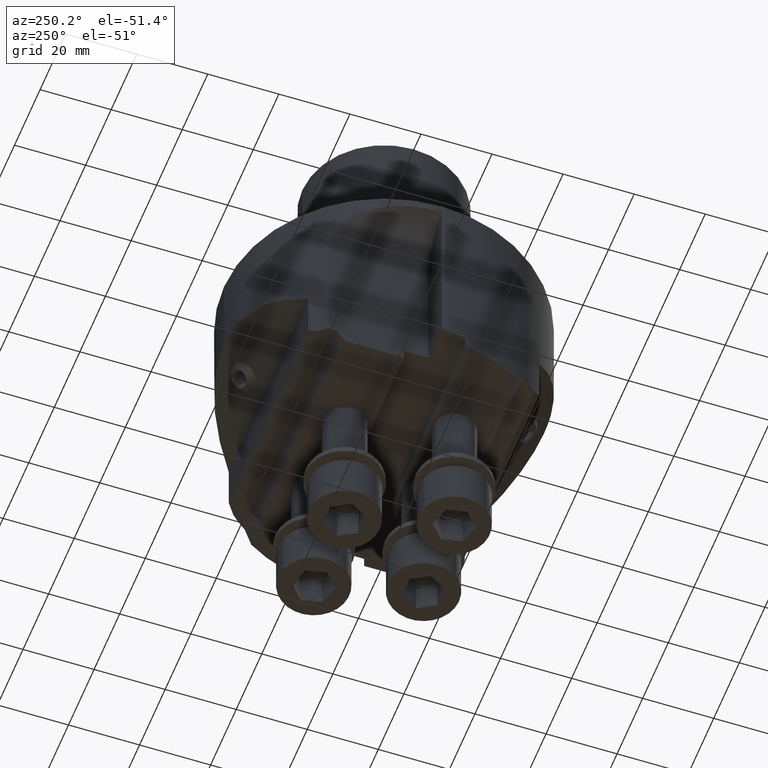
[diagram: clean part render]
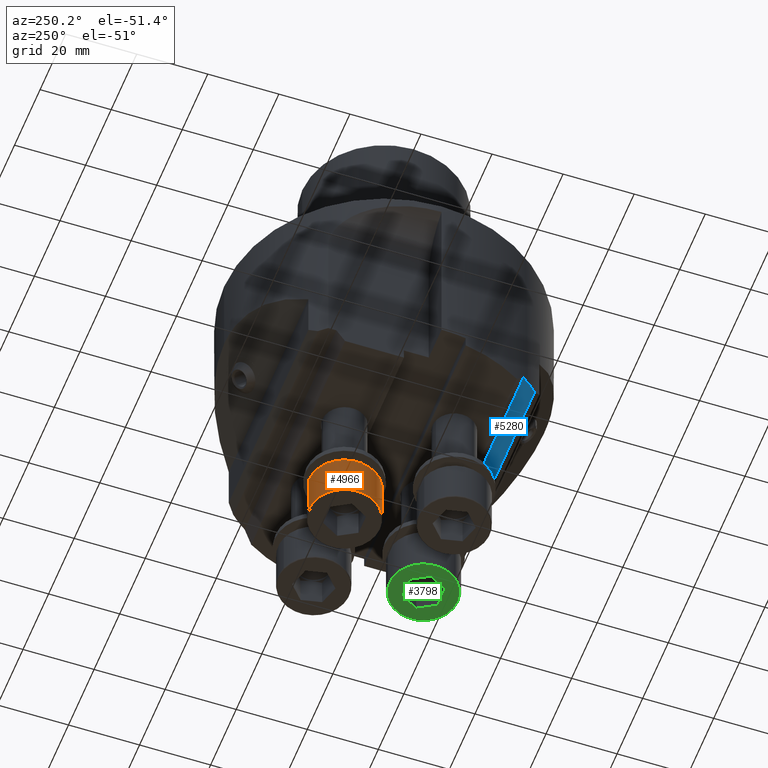
[diagram: same view with three faces highlighted in distinct colors, each labeled with its STEP entity id]
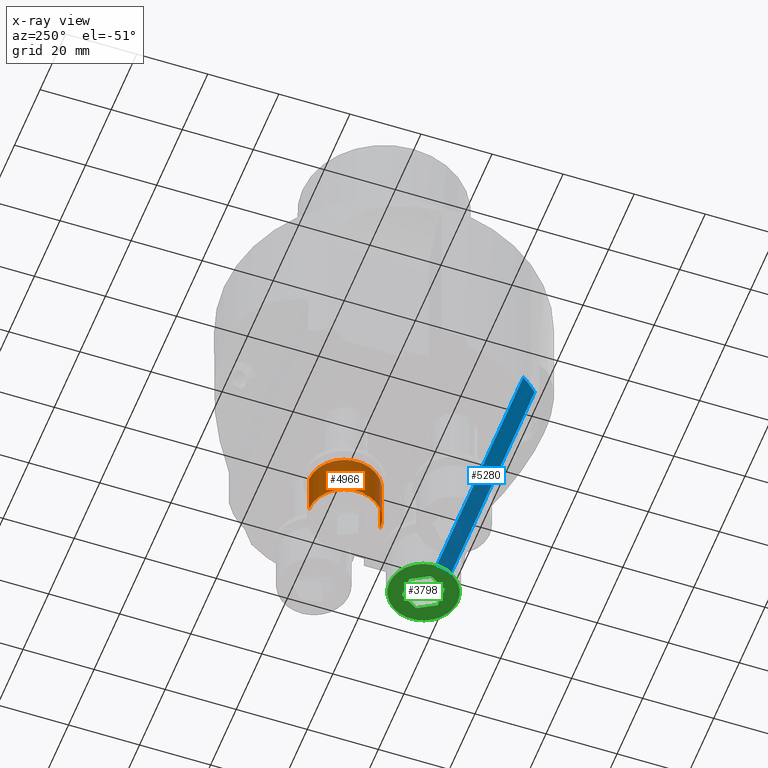
[diagram: x-ray of the same camera — body ghosted, the three highlighted faces saturated]
A machine part, auxiliary view with three faces highlighted in distinct colors.
The next image is the same camera in x-ray (body ghosted, the three faces saturated) — at least one of them is partly hidden behind the body in this view.
Their STEP definitions:

[orange] entity #4966 — the highlighted cylindrical surface (partial cylindrical patch) has radius 10 mm, axis along (-0, 0, -1).
#2578=EDGE_CURVE('NONE',#4334,#5738,#6726,.T.);
#2612=VERTEX_POINT('NONE',#6762);
#3098=EDGE_CURVE('NONE',#2612,#4334,#7309,.T.);
#4334=VERTEX_POINT('NONE',#8710);
#4966=ADVANCED_FACE('NONE',(#9423),#9424,.T.);
#5286=EDGE_CURVE('NONE',#6120,#2612,#9780,.T.);
#5738=VERTEX_POINT('NONE',#10288);
#6010=EDGE_CURVE('NONE',#6120,#5738,#10589,.T.);
#6120=VERTEX_POINT('NONE',#10716);
#6726=CIRCLE('',#11555,10.0);
#6762=CARTESIAN_POINT('',(-8.0,24.0,-83.1));
#7309=LINE('',#12364,#12365);
#8710=CARTESIAN_POINT('',(-8.0,24.0,-95.6));
#9423=FACE_OUTER_BOUND('',#15563,.T.);
#9424=CYLINDRICAL_SURFACE('',#15564,10.0);
#9780=CIRCLE('',#16307,10.0);
#10288=CARTESIAN_POINT('',(-8.0,4.0,-95.6));
#10589=LINE('',#17548,#17549);
#10716=CARTESIAN_POINT('',(-8.0,4.0,-83.1));
#11555=AXIS2_PLACEMENT_3D('',#18402,#18403,#18404);
#12364=CARTESIAN_POINT('',(-8.0,24.0,-88.5539891070486));
#12365=VECTOR('',#19139,1000.0);
#15563=EDGE_LOOP('',(#21869,#21870,#21871,#21872));
#15564=AXIS2_PLACEMENT_3D('',#21873,#21874,#21875);
#16307=AXIS2_PLACEMENT_3D('',#22285,#22286,#22287);
#17548=CARTESIAN_POINT('',(-8.0,4.0,-88.5539891070486));
#17549=VECTOR('',#23315,1000.0);
#18402=CARTESIAN_POINT('',(-8.0,14.0,-95.6));
#18403=DIRECTION('',(0.0,0.0,1.0));
#18404=DIRECTION('',(-1.66533453693774E-016,-1.0,0.0));
#19139=DIRECTION('',(0.0,0.0,-1.0));
#21869=ORIENTED_EDGE('',*,*,#6010,.F.);
#21870=ORIENTED_EDGE('',*,*,#5286,.T.);
#21871=ORIENTED_EDGE('',*,*,#3098,.T.);
#21872=ORIENTED_EDGE('',*,*,#2578,.T.);
#21873=CARTESIAN_POINT('',(-8.0,14.0,-88.5539891070486));
#21874=DIRECTION('',(-0.0,0.0,-1.0));
#21875=DIRECTION('',(1.66533453693774E-016,1.0,0.0));
#22285=CARTESIAN_POINT('',(-8.0,14.0,-83.1));
#22286=DIRECTION('',(0.0,0.0,-1.0));
#22287=DIRECTION('',(1.66533453693774E-016,1.0,0.0));
#23315=DIRECTION('',(0.0,0.0,-1.0));

[blue] entity #5280 — the highlighted planar face has unit normal (0, -0, 1).
#2332=VERTEX_POINT('NONE',#6447);
#2386=EDGE_CURVE('NONE',#4972,#2332,#6509,.T.);
#2962=EDGE_CURVE('NONE',#3320,#3476,#7155,.T.);
#3320=VERTEX_POINT('NONE',#7561);
#3476=VERTEX_POINT('NONE',#7741);
#3888=EDGE_CURVE('NONE',#4972,#4964,#8202,.T.);
#4926=EDGE_CURVE('NONE',#3476,#2332,#9378,.T.);
#4964=VERTEX_POINT('NONE',#9421);
#4972=VERTEX_POINT('NONE',#9431);
#5280=ADVANCED_FACE('NONE',(#9773),#9774,.F.);
#5684=EDGE_CURVE('NONE',#4964,#3320,#10224,.T.);
#6447=CARTESIAN_POINT('',(-36.7287353444139,-26.0,-52.5));
#6509=LINE('',#11262,#11263);
#7155=LINE('',#12163,#12164);
#7561=CARTESIAN_POINT('',(33.0870065131314,-30.5,-52.5));
#7741=CARTESIAN_POINT('',(-33.0870065131314,-30.5,-52.5));
#8202=LINE('',#13685,#13686);
#9378=CIRCLE('',#15454,45.0);
#9421=CARTESIAN_POINT('',(34.9999999999998,-28.2842712474622,-52.5));
#9431=CARTESIAN_POINT('',(34.9999999999998,-26.0,-52.5));
#9773=FACE_OUTER_BOUND('',#16296,.T.);
#9774=PLANE('',#16297);
#10224=CIRCLE('',#17062,45.0);
#11262=CARTESIAN_POINT('',(45.0,-26.0,-52.5));
#11263=VECTOR('',#18137,1000.0);
#12163=CARTESIAN_POINT('',(-31.1247489949718,-30.5,-52.5));
#12164=VECTOR('',#18944,1000.0);
#13685=CARTESIAN_POINT('',(34.9999999999997,-45.0000000000006,-52.5));
#13686=VECTOR('',#20291,1000.0);
#15454=AXIS2_PLACEMENT_3D('',#21813,#21814,#21815);
#16296=EDGE_LOOP('',(#22273,#22274,#22275,#22276,#22277));
#16297=AXIS2_PLACEMENT_3D('',#22278,#22279,#22280);
#17062=AXIS2_PLACEMENT_3D('',#22849,#22850,#22851);
#18137=DIRECTION('',(-1.0,0.0,0.0));
#18944=DIRECTION('',(-1.0,0.0,0.0));
#20291=DIRECTION('',(-6.98296672221876E-015,-1.0,0.0));
#21813=CARTESIAN_POINT('',(0.0,0.0,-52.5));
#21814=DIRECTION('',(0.0,0.0,-1.0));
#21815=DIRECTION('',(1.33226762955019E-014,1.0,0.0));
#22273=ORIENTED_EDGE('',*,*,#5684,.T.);
#22274=ORIENTED_EDGE('',*,*,#2962,.T.);
#22275=ORIENTED_EDGE('',*,*,#4926,.T.);
#22276=ORIENTED_EDGE('',*,*,#2386,.F.);
#22277=ORIENTED_EDGE('',*,*,#3888,.T.);
#22278=CARTESIAN_POINT('',(45.0,-26.0,-52.5));
#22279=DIRECTION('',(0.0,-0.0,1.0));
#22280=DIRECTION('',(0.0,1.0,0.0));
#22849=CARTESIAN_POINT('',(0.0,0.0,-52.5));
#22850=DIRECTION('',(0.0,0.0,-1.0));
#22851=DIRECTION('',(0.0,1.0,0.0));

[green] entity #3798 — the highlighted planar face has unit normal (0, 0, 1).
#2206=EDGE_CURVE('NONE',#5820,#5490,#6308,.T.);
#2390=EDGE_CURVE('NONE',#5300,#5226,#6513,.T.);
#2500=VERTEX_POINT('NONE',#6638);
#2600=VERTEX_POINT('NONE',#6749);
#2722=VERTEX_POINT('NONE',#6889);
#3016=EDGE_CURVE('NONE',#2500,#2722,#7217,.T.);
#3526=EDGE_CURVE('NONE',#2600,#2500,#7795,.T.);
#3798=ADVANCED_FACE('NONE',(#8099,#8100),#8101,.F.);
#4302=EDGE_CURVE('NONE',#5490,#6158,#8672,.T.);
#4680=EDGE_CURVE('NONE',#5226,#5300,#9098,.T.);
#4902=EDGE_CURVE('NONE',#6158,#2600,#9352,.T.);
#5226=VERTEX_POINT('NONE',#9710);
#5300=VERTEX_POINT('NONE',#9795);
#5490=VERTEX_POINT('NONE',#10011);
#5820=VERTEX_POINT('NONE',#10380);
#5892=EDGE_CURVE('NONE',#2722,#5820,#10461,.T.);
#6158=VERTEX_POINT('NONE',#10755);
#6308=LINE('',#10985,#10986);
#6513=CIRCLE('',#11272,9.6);
#6638=CARTESIAN_POINT('',(5.113248654052,-19.0,-96.0));
#6749=CARTESIAN_POINT('',(10.8867513459483,-18.9999999999999,-96.0));
#6889=CARTESIAN_POINT('',(2.22649730810385,-14.0,-96.0));
#7217=LINE('',#12241,#12242);
#7795=LINE('',#13091,#13092);
#8099=FACE_OUTER_BOUND('',#13529,.T.);
#8100=FACE_BOUND('',#13530,.T.);
#8101=PLANE('',#13531);
#8672=LINE('',#14423,#14424);
#9098=CIRCLE('',#15072,9.6);
#9352=LINE('',#15416,#15417);
#9710=CARTESIAN_POINT('',(8.00000000000003,-4.39999999999995,-96.0));
#9795=CARTESIAN_POINT('',(8.00000000000016,-23.5999999999999,-96.0));
#10011=CARTESIAN_POINT('',(10.8867513459482,-8.99999999999993,-96.0));
#10380=CARTESIAN_POINT('',(5.11324865405193,-8.99999999999997,-96.0));
#10461=LINE('',#17368,#17369);
#10755=CARTESIAN_POINT('',(13.7735026918963,-13.9999999999999,-96.0));
#10985=CARTESIAN_POINT('',(10.8867513459482,-8.99999999999993,-96.0));
#10986=VECTOR('',#17896,1000.0);
#11272=AXIS2_PLACEMENT_3D('',#18138,#18139,#18140);
#12241=CARTESIAN_POINT('',(5.113248654052,-19.0,-96.0));
#12242=VECTOR('',#19030,1000.0);
#13091=CARTESIAN_POINT('',(10.8867513459483,-18.9999999999999,-96.0));
#13092=VECTOR('',#19808,1000.0);
#13529=EDGE_LOOP('',(#20164,#20165));
#13530=EDGE_LOOP('',(#20166,#20167,#20168,#20169,#20170,#20171));
#13531=AXIS2_PLACEMENT_3D('',#20172,#20173,#20174);
#14423=CARTESIAN_POINT('',(13.7735026918963,-13.9999999999999,-96.0));
#14424=VECTOR('',#20915,1000.0);
#15072=AXIS2_PLACEMENT_3D('',#21474,#21475,#21476);
#15416=CARTESIAN_POINT('',(13.7735026918963,-13.9999999999999,-96.0));
#15417=VECTOR('',#21796,1000.0);
#17368=CARTESIAN_POINT('',(5.11324865405193,-8.99999999999997,-96.0));
#17369=VECTOR('',#23163,1000.0);
#17896=DIRECTION('',(1.0,6.81643326852499E-015,0.0));
#18138=CARTESIAN_POINT('',(8.0000000000001,-13.9999999999999,-96.0));
#18139=DIRECTION('',(0.0,0.0,-1.0));
#18140=DIRECTION('',(-6.81643326852499E-015,1.0,0.0));
#19030=DIRECTION('',(-0.500000000000004,0.866025403784437,0.0));
#19808=DIRECTION('',(-1.0,-6.81643326852499E-015,0.0));
#20164=ORIENTED_EDGE('',*,*,#4680,.T.);
#20165=ORIENTED_EDGE('',*,*,#2390,.T.);
#20166=ORIENTED_EDGE('',*,*,#4902,.F.);
#20167=ORIENTED_EDGE('',*,*,#4302,.F.);
#20168=ORIENTED_EDGE('',*,*,#2206,.F.);
#20169=ORIENTED_EDGE('',*,*,#5892,.F.);
#20170=ORIENTED_EDGE('',*,*,#3016,.F.);
#20171=ORIENTED_EDGE('',*,*,#3526,.F.);
#20172=CARTESIAN_POINT('',(8.00000000000011,-13.9999999999999,-96.0));
#20173=DIRECTION('',(0.0,0.0,1.0));
#20174=DIRECTION('',(-1.0,-6.81643326852499E-015,0.0));
#20915=DIRECTION('',(0.500000000000004,-0.866025403784436,-0.0));
#21474=CARTESIAN_POINT('',(8.0000000000001,-13.9999999999999,-96.0));
#21475=DIRECTION('',(0.0,0.0,-1.0));
#21476=DIRECTION('',(-6.81643326852499E-015,1.0,0.0));
#21796=DIRECTION('',(-0.499999999999992,-0.866025403784443,0.0));
#23163=DIRECTION('',(0.499999999999992,0.866025403784443,0.0));